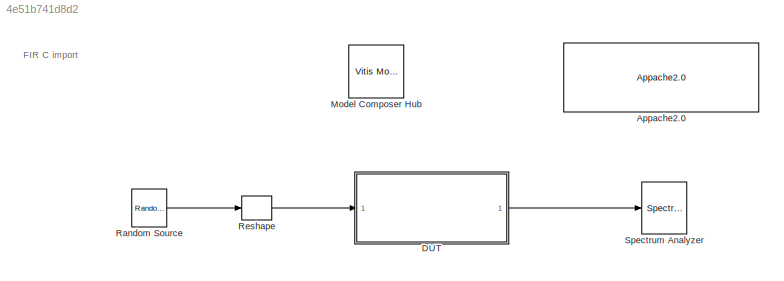
MODEL slx_4e51b741d8d2
KIND model
CONFIG AbsTol = auto
CONFIG EnableMultiTasking = off
CONFIG FixedStep = auto
CONFIG MaxStep = auto
CONFIG MinStep = auto
CONFIG PostLoadFcn = xmcHubUpdateInstalledDevice(gcs);
CONFIG RelTol = 1e-3
CONFIG SampleTimeConstraint = Unconstrained
CONFIG SolverName = VariableStepAuto
CONFIG StartTime = 0.0
CONFIG StopTime = inf
BLOCK [Reference] Appache2.0  REF=vmcUtilities/Appache2.0
  SourceBlock = vmcUtilities/Appache2.0
  SourceType = DocBlock
  UserDataPersistent = on
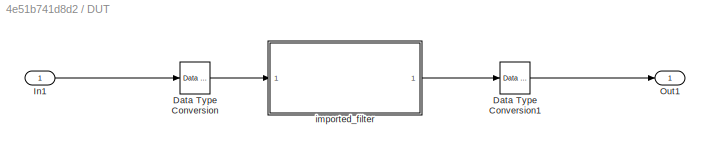
BLOCK [SubSystem] DUT
BLOCK [Reference] DUT/Data Type Conversion  REF=hlsBasic/Data Type Conversion
  SourceBlock = hlsBasic/Data Type Conversion
  SourceType = DTC
BLOCK [Reference] DUT/Data Type Conversion1  REF=hlsBasic/Data Type Conversion
  SourceBlock = hlsBasic/Data Type Conversion
  SourceType = DTC
BLOCK [Inport] DUT/In1
BLOCK [Outport] DUT/Out1
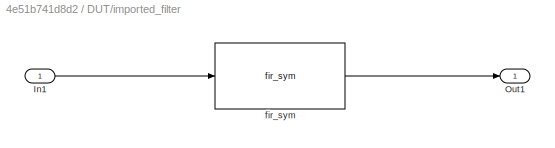
BLOCK [SubSystem] DUT/imported_filter
BLOCK [Inport] DUT/imported_filter/In1
BLOCK [Outport] DUT/imported_filter/Out1
BLOCK [Reference] DUT/imported_filter/fir_sym  REF=fir_c_import/fir_sym
  SourceBlock = fir_c_import/fir_sym
  SourceType = Import Function
BLOCK [Reference] Model Composer Hub  REF=vmcUtilities/Vitis Model Composer Hub
  SourceBlock = vmcUtilities/Vitis Model Composer Hub
  SourceType = VMC Hub
  Tag = genX
  UserDataPersistent = on
BLOCK [Reference] Random Source  REF=dspobslib/Random
Source
  SourceBlock = dspobslib/Random\nSource
  SourceType = Random Source Obsolete
  UserDataPersistent = on
BLOCK [Reshape] Reshape
BLOCK [SpectrumAnalyzer] Spectrum Analyzer
  AllowFFTLengthLessThanSamplesPerUpdate = on
  AveragingMethod = Exponential
  ChannelNames = [""]
  DefaultConfigurationName = spbscopes.SpectrumAnalyzerBlockCfg
  GraphicalSettings = {"GraphicalSettings":{"SpectralMask":{"CustomReferenceLevel":"0","EnabledMasks":"None","LowerMask":"-Inf","MaskFrequencyOffset":"0","ReferenceLevel":"Custom","SelectedChannel":"1","UpperMask":"Inf"},"Style":{"BackgroundColor":[0.12941176470588237,0.12941176470588237,0.12941176470588237],"AxesColor":[0,0,0],"LabelsColor":[0.68627450980392157,0.68627450980392157,0.68627450980392157],"PreserveColors"...<+223ch>
  Method = Welch
  SampleRate = 1
  ScopeFrameLocation = window
  ScopeSpecificationString = spbscopes.SpectrumAnalyzerBlockCfg('CurrentConfiguration', extmgr.ConfigurationSet(extmgr.Configuration('Core','General UI',true,'FigureColor',[0.16        0.16        0.16]),extmgr.Configuration('Visuals','Spectrum',true,'Title','','YLabel','','MinYLim','-112.1969','MaxYLim','21.3448','Legend',false,'AxesProperties',struct('XGrid',{'on','on'},'YGrid',{'on','on'},'ZGrid',{'on','on'},'Color',{[0 0 ...<+2319ch>
  Span = 1
  StartFrequency = -0.5
  StopFrequency = 0.5
  Visible = on
  WasSavedAsWebScope = on
  WindowPosition = [506.000000,197.000000,832.000000,446.000000,]
  YLimits = [-91.2998 13.3223]
ANNOTATION (root): FIR C import
LINE DUT/Data Type Conversion1:1 -> DUT/Out1:1
LINE DUT/Data Type Conversion:1 -> DUT/imported_filter:1
LINE DUT/In1:1 -> DUT/Data Type Conversion:1
LINE DUT/imported_filter/In1:1 -> DUT/imported_filter/fir_sym:1
LINE DUT/imported_filter/fir_sym:1 -> DUT/imported_filter/Out1:1
LINE DUT/imported_filter:1 -> DUT/Data Type Conversion1:1
LINE DUT:1 -> Spectrum Analyzer:1
LINE Random Source:1 -> Reshape:1
LINE Reshape:1 -> DUT:1
